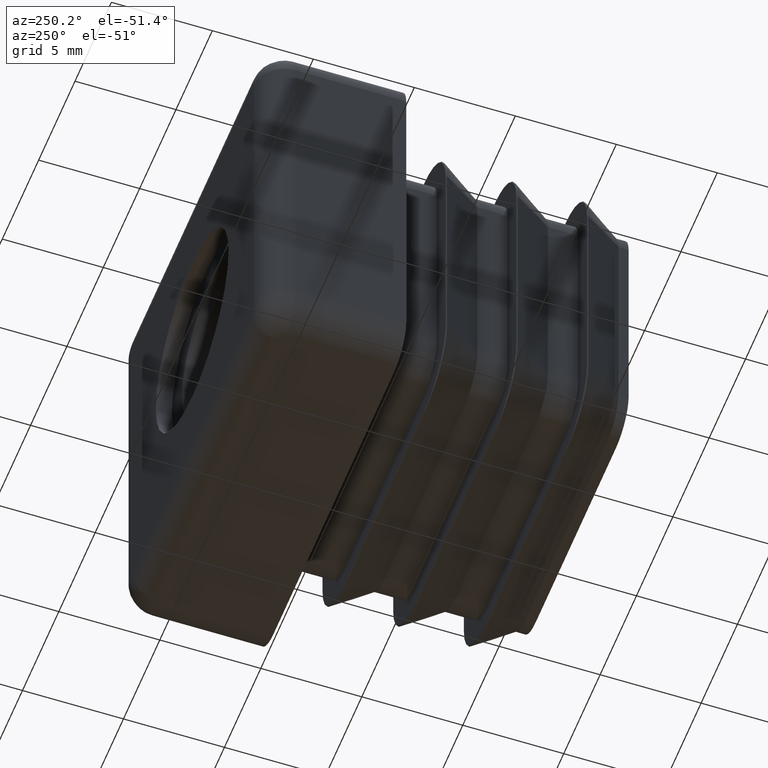
[diagram: clean part render]
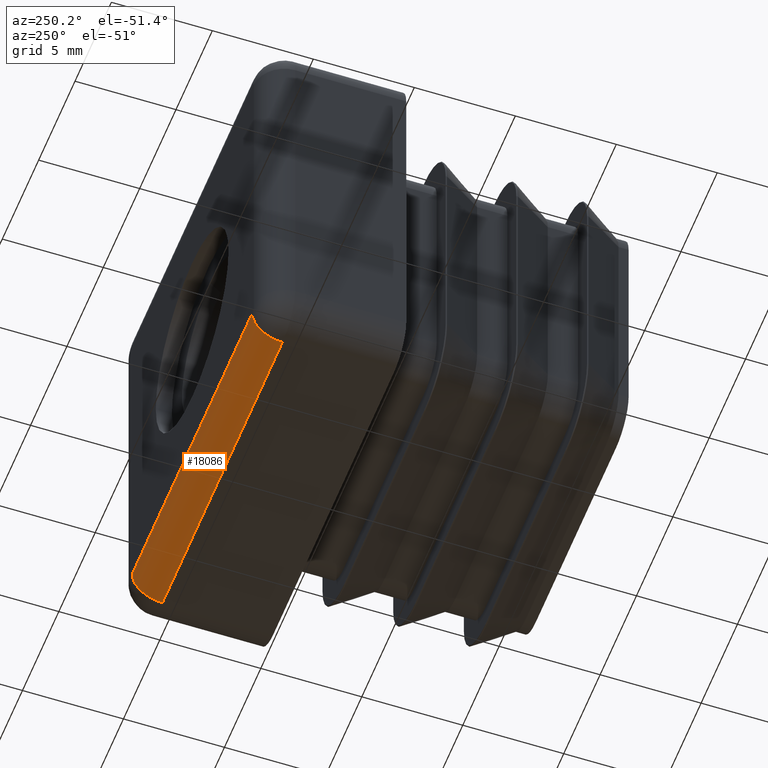
[diagram: same view with one face highlighted and labeled with its STEP entity id]
A machine part, auxiliary view. The second image highlights one B-rep face of the part: STEP entity #18086.
In plain terms, the highlighted cylindrical surface (edge-blend (fillet) strip) has radius 1.5 mm, axis along (1, 0, 0).
Its self-contained STEP definition (entity closure, byte-faithful):
#71 = CARTESIAN_POINT ( 'NONE',  ( 8.250000000000003553, 5.500000000000000000, -9.999999999999994671 ) ) ;
#117 = VECTOR ( 'NONE', #13804, 1000.000000000000000 ) ;
#942 = DIRECTION ( 'NONE',  ( 0.000000000000000000, 0.000000000000000000, 1.000000000000000000 ) ) ;
#1835 = EDGE_CURVE ( 'NONE', #15703, #16431, #18703, .T. ) ;
#1913 = VECTOR ( 'NONE', #2979, 1000.000000000000000 ) ;
#2404 = CYLINDRICAL_SURFACE ( 'NONE', #13448, 1.499999999999999556 ) ;
#2584 = ORIENTED_EDGE ( 'NONE', *, *, #4700, .T. ) ;
#2979 = DIRECTION ( 'NONE',  ( 1.000000000000000000, -0.000000000000000000, -0.000000000000000000 ) ) ;
#3922 = EDGE_LOOP ( 'NONE', ( #2584, #12356, #20185, #13218 ) ) ;
#4700 = EDGE_CURVE ( 'NONE', #19764, #16431, #8538, .T. ) ;
#5835 = CARTESIAN_POINT ( 'NONE',  ( 8.250000000000003553, 5.500000000000000000, -8.499999999999994671 ) ) ;
#5946 = DIRECTION ( 'NONE',  ( 0.000000000000000000, 0.000000000000000000, -1.000000000000000000 ) ) ;
#7437 = CARTESIAN_POINT ( 'NONE',  ( 8.250000000000003553, 7.000000000000000000, -8.499999999999994671 ) ) ;
#8538 = CIRCLE ( 'NONE', #12411, 1.499999999999999556 ) ;
#9358 = DIRECTION ( 'NONE',  ( -1.000000000000000000, 0.000000000000000000, 0.000000000000000000 ) ) ;
#9730 = LINE ( 'NONE', #16855, #117 ) ;
#10212 = AXIS2_PLACEMENT_3D ( 'NONE', #15519, #9358, #15644 ) ;
#10273 = EDGE_CURVE ( 'NONE', #19764, #14749, #9730, .T. ) ;
#10373 = CARTESIAN_POINT ( 'NONE',  ( 0.000000000000000000, 5.500000000000000000, -8.499999999999994671 ) ) ;
#10543 = DIRECTION ( 'NONE',  ( -1.000000000000000000, 0.000000000000000000, 0.000000000000000000 ) ) ;
#10780 = FACE_OUTER_BOUND ( 'NONE', #3922, .T. ) ;
#12356 = ORIENTED_EDGE ( 'NONE', *, *, #1835, .F. ) ;
#12411 = AXIS2_PLACEMENT_3D ( 'NONE', #5835, #10543, #942 ) ;
#13218 = ORIENTED_EDGE ( 'NONE', *, *, #10273, .F. ) ;
#13448 = AXIS2_PLACEMENT_3D ( 'NONE', #10373, #16400, #5946 ) ;
#13804 = DIRECTION ( 'NONE',  ( -1.000000000000000000, 0.000000000000000000, 0.000000000000000000 ) ) ;
#14083 = EDGE_CURVE ( 'NONE', #14749, #15703, #16852, .T. ) ;
#14749 = VERTEX_POINT ( 'NONE', #16446 ) ;
#15519 = CARTESIAN_POINT ( 'NONE',  ( -8.249999999999998224, 5.500000000000000000, -8.499999999999994671 ) ) ;
#15644 = DIRECTION ( 'NONE',  ( 0.000000000000000000, 0.000000000000000000, 1.000000000000000000 ) ) ;
#15703 = VERTEX_POINT ( 'NONE', #19888 ) ;
#16400 = DIRECTION ( 'NONE',  ( 1.000000000000000000, 0.000000000000000000, 0.000000000000000000 ) ) ;
#16431 = VERTEX_POINT ( 'NONE', #17356 ) ;
#16446 = CARTESIAN_POINT ( 'NONE',  ( -8.249999999999998224, 7.000000000000000000, -8.499999999999994671 ) ) ;
#16852 = CIRCLE ( 'NONE', #10212, 1.499999999999999556 ) ;
#16855 = CARTESIAN_POINT ( 'NONE',  ( -8.249999999999998224, 7.000000000000000000, -8.499999999999994671 ) ) ;
#17356 = CARTESIAN_POINT ( 'NONE',  ( 8.250000000000003553, 5.500000000000000000, -9.999999999999994671 ) ) ;
#18086 = ADVANCED_FACE ( 'NONE', ( #10780 ), #2404, .T. ) ;
#18703 = LINE ( 'NONE', #71, #1913 ) ;
#19764 = VERTEX_POINT ( 'NONE', #7437 ) ;
#19888 = CARTESIAN_POINT ( 'NONE',  ( -8.249999999999998224, 5.500000000000000000, -9.999999999999994671 ) ) ;
#20185 = ORIENTED_EDGE ( 'NONE', *, *, #14083, .F. ) ;